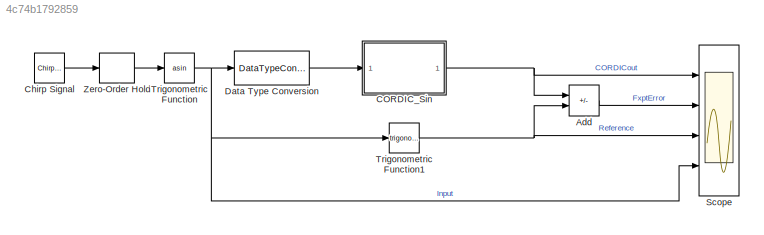
MODEL slx_4c74b1792859
KIND model
CONFIG AbsTol = auto
CONFIG EnableMultiTasking = off
CONFIG FixedStep = auto
CONFIG MaxStep = auto
CONFIG MinStep = auto
CONFIG RelTol = 1e-3
CONFIG SampleTimeConstraint = Unconstrained
CONFIG SolverName = FixedStepDiscrete
CONFIG StartTime = 0.0
CONFIG StopTime = 10.0
BLOCK [Sum] Add
  AccumDataTypeStr = double
  IconShape = rectangular
  Inputs = -+
  OutDataTypeStr = double
  Ports = [2, 1]
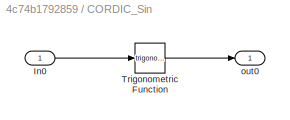
BLOCK [SubSystem] CORDIC_Sin
  Ports = [1, 1]
  RequestExecContextInheritance = off
BLOCK [Inport] CORDIC_Sin/In0
BLOCK [Trigonometry] CORDIC_Sin/Trigonometric Function
  ApproximationMethod = CORDIC
  NumberOfIterations = cordicIter
  Ports = [1, 1]
BLOCK [Outport] CORDIC_Sin/out0
BLOCK [Reference] Chirp Signal  REF=simulink/Sources/Chirp Signal
  Ports = [0, 1]
  SourceBlock = simulink/Sources/Chirp Signal
  SourceProductBaseCode = SL
  SourceType = chirp
BLOCK [DataTypeConversion] Data Type Conversion
  OutDataTypeStr = fixdt(1,bitWidth)
  OutMax = 1.566
  OutMin = -1.566
  RndMeth = Nearest
  SaturateOnIntegerOverflow = off
BLOCK [Scope] Scope
  Floating = off
  NumInputPorts = 4
  Ports = [4]
  ScopeSpecificationString = Simulink.scopes.TimeScopeBlockCfg('CurrentConfiguration', extmgr.ConfigurationSet(extmgr.Configuration('Core','General UI',true),extmgr.Configuration('Core','Source UI',true),extmgr.Configuration('Sources','WiredSimulink',true),extmgr.Configuration('Visuals','Time Domain',true,'SerializedDisplays',{struct('MinYLimReal','-1.2511','MaxYLimReal','1.25012','YLabelReal','','MinYLimMag','0.00000','MaxYL...<+3469ch>
BLOCK [Trigonometry] Trigonometric Function
  Operator = asin
  Ports = [1, 1]
BLOCK [Trigonometry] Trigonometric Function1
  NumberOfIterations = 8
  Ports = [1, 1]
BLOCK [ZeroOrderHold] Zero-Order Hold
  SampleTime = 1/1000
LINE Add:1 -> Scope:2
LINE CORDIC_Sin/In0:1 -> CORDIC_Sin/Trigonometric Function:1
LINE CORDIC_Sin/Trigonometric Function:1 -> CORDIC_Sin/out0:1
NET CORDIC_Sin:1 -> Add:1, Scope:1
LINE Chirp Signal:1 -> Zero-Order Hold:1
LINE Data Type Conversion:1 -> CORDIC_Sin:1
NET Trigonometric Function1:1 -> Add:2, Scope:3
NET Trigonometric Function:1 -> Data Type Conversion:1, Scope:4, Trigonometric Function1:1
LINE Zero-Order Hold:1 -> Trigonometric Function:1
note: NET lines group one-source signal fan-out (src -> all destinations, sorted); 1:1 wires keep LINE
